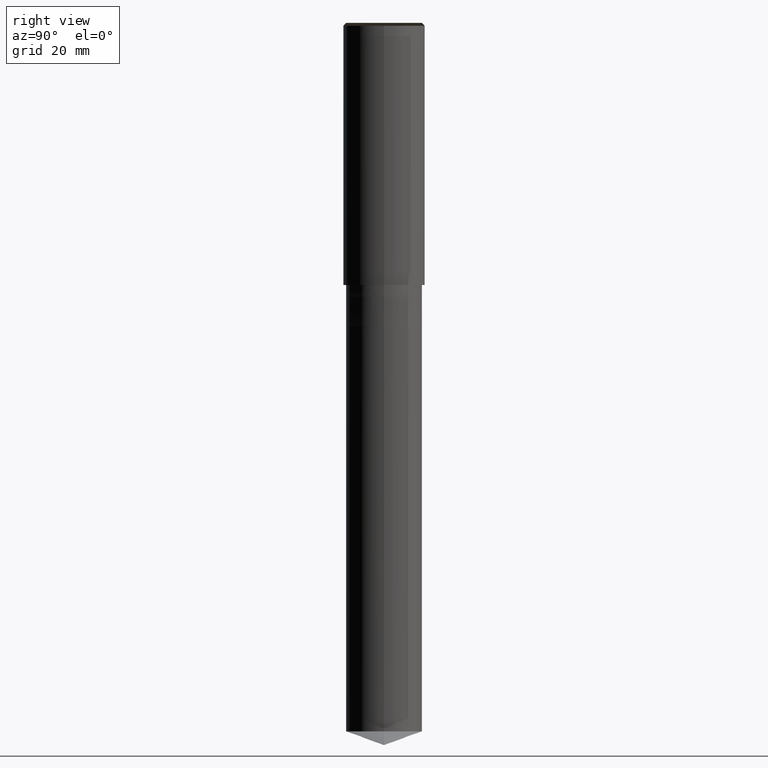
[diagram: clean part render]
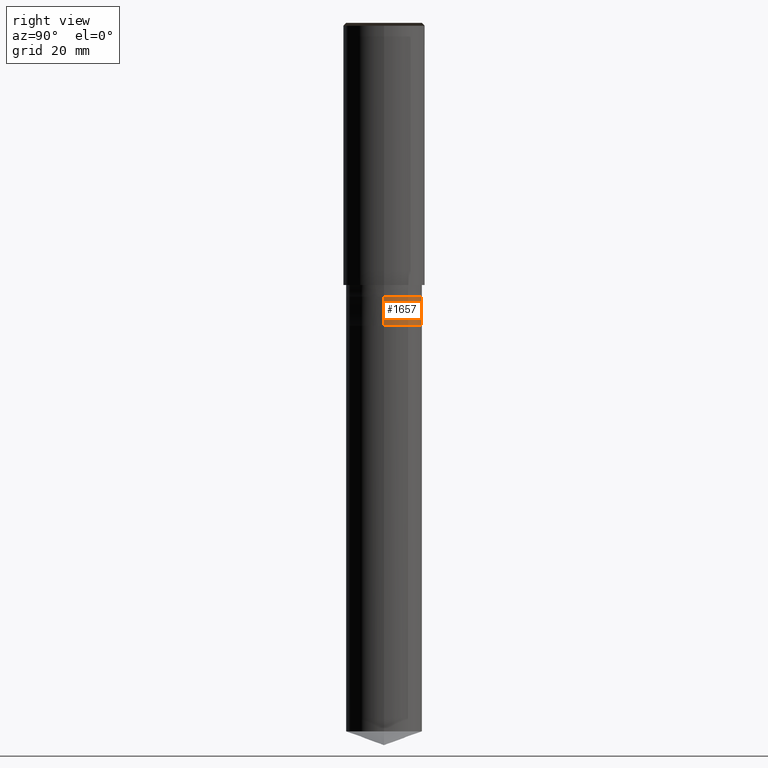
[diagram: same view with one face highlighted and labeled with its STEP entity id]
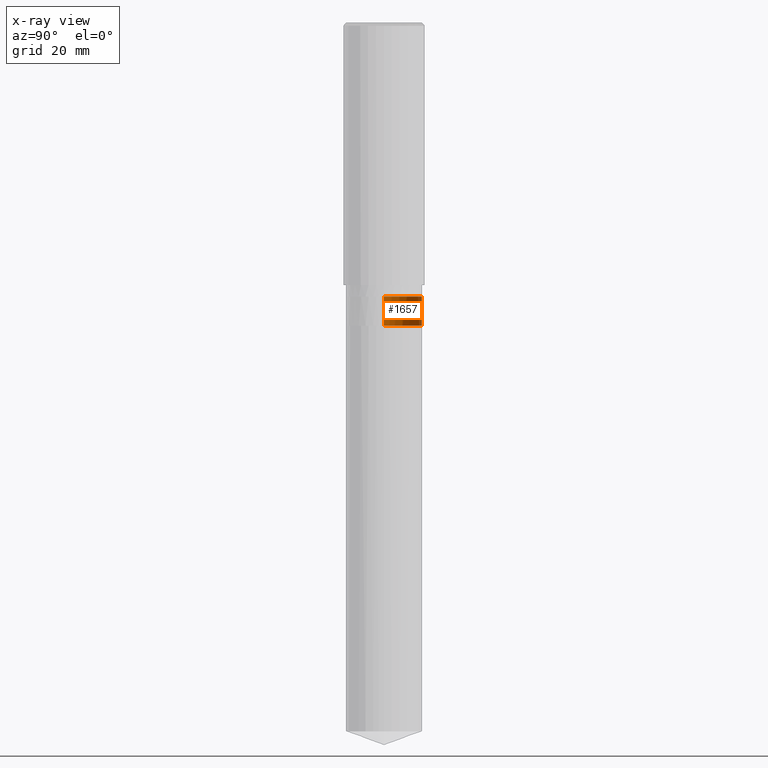
[diagram: x-ray of the same camera — body ghosted, the highlighted face saturated]
A machine part, right view. The second image highlights one B-rep face of the part: STEP entity #1657.
The next image is the same camera in x-ray: the body ghosted, the highlighted face saturated — about 0% of this face is hidden behind the body in this view.
In plain terms, the highlighted face is a freeform B-spline surface patch.
Its self-contained STEP definition (entity closure, byte-faithful):
#1456=CARTESIAN_POINT('',(6.5,0.0,-7.0));
#1457=CARTESIAN_POINT('',(6.5,6.5,-7.0));
#1458=CARTESIAN_POINT('',(0.0,6.5,-7.0));
#1459=CARTESIAN_POINT('',(-6.5,6.5,-7.0));
#1460=CARTESIAN_POINT('',(-6.5,0.0,-7.0));
#1468=CARTESIAN_POINT('',(6.5,0.0,-2.0));
#1469=CARTESIAN_POINT('',(6.5,6.5,-2.0));
#1470=CARTESIAN_POINT('',(0.0,6.5,-2.0));
#1471=CARTESIAN_POINT('',(-6.5,6.5,-2.0));
#1472=CARTESIAN_POINT('',(-6.5,0.0,-2.0));
#1638=(
BOUNDED_SURFACE()
B_SPLINE_SURFACE(1,2,(
(#1456,#1457,#1458,#1459,#1460),
(#1468,#1469,#1470,#1471,#1472)
), .UNSPECIFIED.,.F.,.F.,.F.)
B_SPLINE_SURFACE_WITH_KNOTS((2,2),(3,2,3),(
0.0,1.0),(
0.0,0.5,1.0), .UNSPECIFIED.)
GEOMETRIC_REPRESENTATION_ITEM()
RATIONAL_B_SPLINE_SURFACE(((1.0,0.707106781187,1.0,0.707106781187,1.0),
(1.0,0.707106781187,1.0,0.707106781187,1.0)
))
REPRESENTATION_ITEM('')
SURFACE()
);
#1639=(
BOUNDED_CURVE()
B_SPLINE_CURVE(2,(#1460,#1459,#1458,#1457,#1456),.UNSPECIFIED.,.F.,.F.)
B_SPLINE_CURVE_WITH_KNOTS((3,2,3),
(0.0,0.5,1.0),.UNSPECIFIED.)
CURVE()
GEOMETRIC_REPRESENTATION_ITEM()
RATIONAL_B_SPLINE_CURVE((1.0,0.707106781187,1.0,0.707106781187,1.0))
REPRESENTATION_ITEM('')
);
#1640=(
BOUNDED_CURVE()
B_SPLINE_CURVE(1,(#1456,#1468),.UNSPECIFIED.,.F.,.F.)
B_SPLINE_CURVE_WITH_KNOTS((2,2),
(0.0,1.0),.UNSPECIFIED.)
CURVE()
GEOMETRIC_REPRESENTATION_ITEM()
RATIONAL_B_SPLINE_CURVE((1.0,1.0))
REPRESENTATION_ITEM('')
);
#1641=(
BOUNDED_CURVE()
B_SPLINE_CURVE(2,(#1468,#1469,#1470,#1471,#1472),.UNSPECIFIED.,.F.,.F.)
B_SPLINE_CURVE_WITH_KNOTS((3,2,3),
(0.0,0.5,1.0),.UNSPECIFIED.)
CURVE()
GEOMETRIC_REPRESENTATION_ITEM()
RATIONAL_B_SPLINE_CURVE((1.0,0.707106781187,1.0,0.707106781187,1.0))
REPRESENTATION_ITEM('')
);
#1642=(
BOUNDED_CURVE()
B_SPLINE_CURVE(1,(#1472,#1460),.UNSPECIFIED.,.F.,.F.)
B_SPLINE_CURVE_WITH_KNOTS((2,2),
(0.0,1.0),.UNSPECIFIED.)
CURVE()
GEOMETRIC_REPRESENTATION_ITEM()
RATIONAL_B_SPLINE_CURVE((1.0,1.0))
REPRESENTATION_ITEM('')
);
#1643=VERTEX_POINT('',#1456);
#1644=VERTEX_POINT('',#1460);
#1645=VERTEX_POINT('',#1468);
#1646=VERTEX_POINT('',#1472);
#1647=EDGE_CURVE('',#1644,#1643,#1639,.T.);
#1648=EDGE_CURVE('',#1643,#1645,#1640,.T.);
#1649=EDGE_CURVE('',#1645,#1646,#1641,.T.);
#1650=EDGE_CURVE('',#1646,#1644,#1642,.T.);
#1651=ORIENTED_EDGE('',*,*,#1647,.T.);
#1652=ORIENTED_EDGE('',*,*,#1648,.T.);
#1653=ORIENTED_EDGE('',*,*,#1649,.T.);
#1654=ORIENTED_EDGE('',*,*,#1650,.T.);
#1655=EDGE_LOOP('',(#1651,#1652,#1653,#1654));
#1656=FACE_OUTER_BOUND('',#1655,.T.);
#1657=ADVANCED_FACE('',(#1656),#1638,.T.);